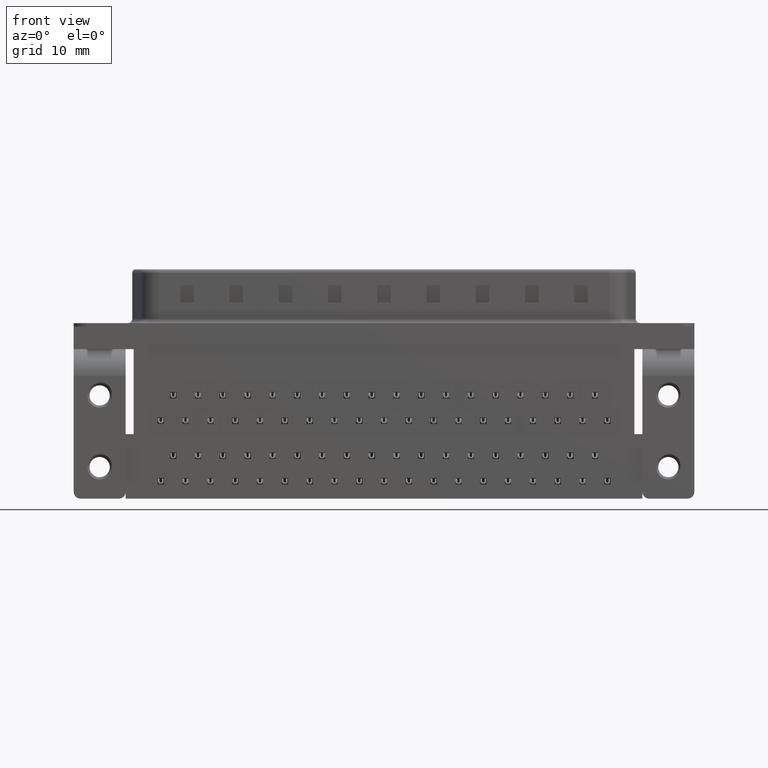
[diagram: clean part render]
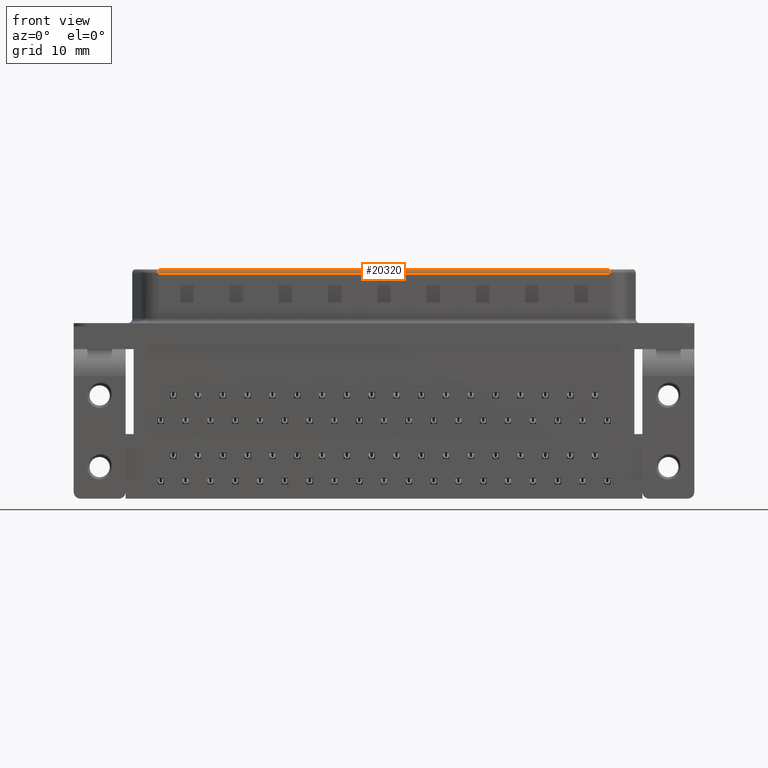
[diagram: same view with one face highlighted and labeled with its STEP entity id]
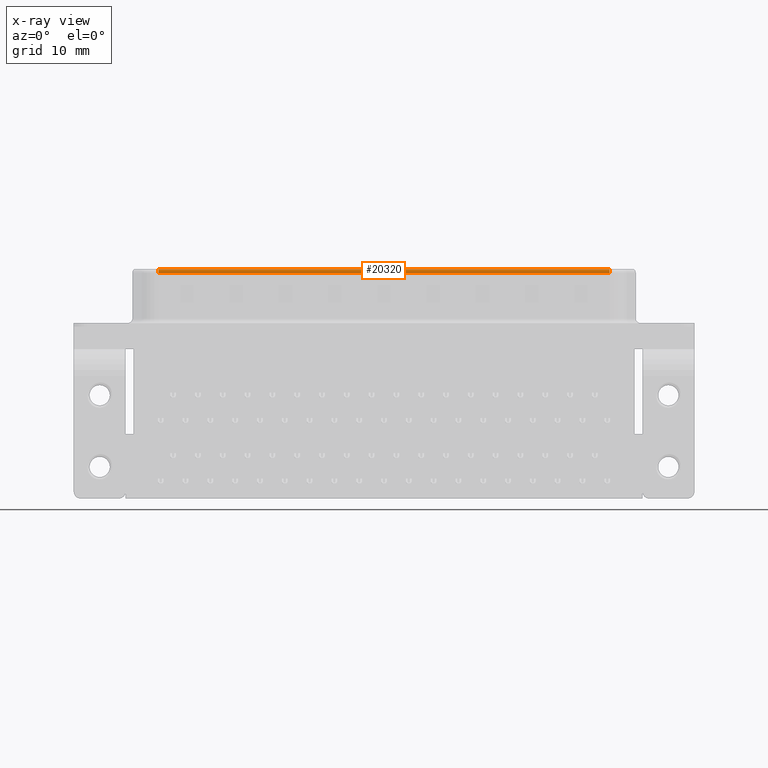
[diagram: x-ray of the same camera — body ghosted, the highlighted face saturated]
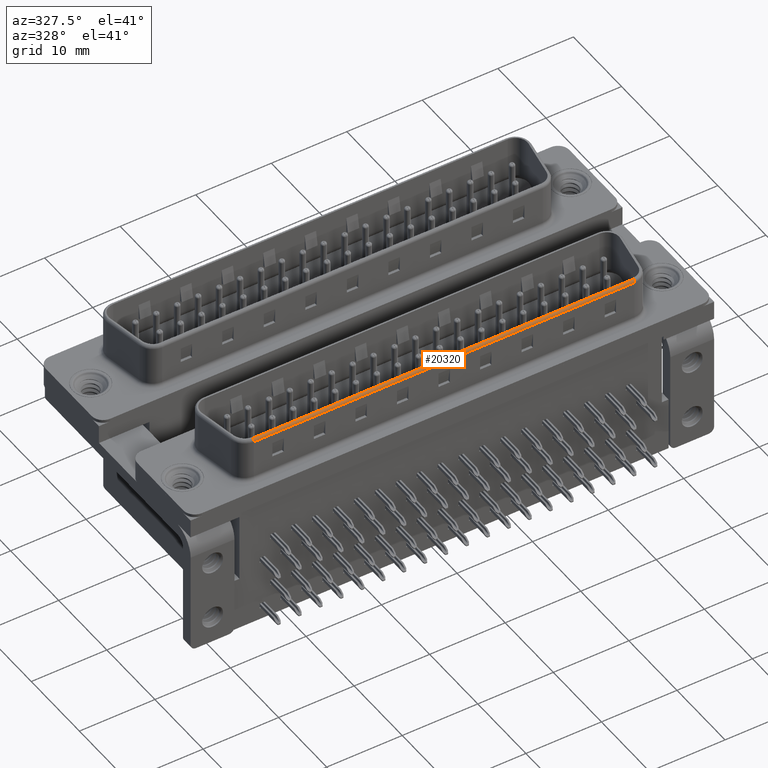
[diagram: same view with one face highlighted and labeled with its STEP entity id]
A machine part, front view. The second image highlights one B-rep face of the part: STEP entity #20320.
The next image is the same camera in x-ray: the body ghosted, the highlighted face saturated — about 0% of this face is hidden behind the body in this view.
A second angle (auxiliary view) of the same face is appended — the face is thin or edge-on in the first view.
In plain terms, the highlighted cylindrical surface (edge-blend (fillet) strip) has radius 0.5 mm, axis along (1, -0, 0).
Its self-contained STEP definition (entity closure, byte-faithful):
#1452 = EDGE_LOOP ( 'NONE', ( #27996, #8254, #47394, #29052 ) ) ;
#3951 = DIRECTION ( 'NONE',  ( 0.0000000000000000000, 0.0000000000000000000, -1.000000000000000000 ) ) ;
#4993 = VERTEX_POINT ( 'NONE', #32821 ) ;
#5036 = DIRECTION ( 'NONE',  ( 0.0000000000000000000, 1.000000000000000000, 0.0000000000000000000 ) ) ;
#6137 = AXIS2_PLACEMENT_3D ( 'NONE', #20110, #36561, #52963 ) ;
#7535 = EDGE_CURVE ( 'NONE', #4993, #47974, #23399, .T. ) ;
#8254 = ORIENTED_EDGE ( 'NONE', *, *, #7535, .F. ) ;
#9323 = CYLINDRICAL_SURFACE ( 'NONE', #33798, 0.5000000000000000000 ) ;
#9503 = VECTOR ( 'NONE', #38551, 1000.000000000000000 ) ;
#11694 = DIRECTION ( 'NONE',  ( 1.000000000000000000, -3.441890791600536047E-17, 0.0000000000000000000 ) ) ;
#12443 = EDGE_CURVE ( 'NONE', #38569, #37411, #30610, .T. ) ;
#13372 = FACE_OUTER_BOUND ( 'NONE', #1452, .T. ) ;
#20110 = CARTESIAN_POINT ( 'NONE',  ( 6.549847220455651708, -4.080000000000000071, 6.000000000000000000 ) ) ;
#20320 = ADVANCED_FACE ( 'NONE', ( #13372 ), #9323, .T. ) ;
#23399 = CIRCLE ( 'NONE', #6137, 0.5000000000000004441 ) ;
#23449 = CARTESIAN_POINT ( 'NONE',  ( 56.95015277954435362, -4.380000000000001670, 6.400000000000000355 ) ) ;
#27389 = VECTOR ( 'NONE', #11694, 1000.000000000000000 ) ;
#27996 = ORIENTED_EDGE ( 'NONE', *, *, #49133, .F. ) ;
#29052 = ORIENTED_EDGE ( 'NONE', *, *, #12443, .F. ) ;
#29869 = DIRECTION ( 'NONE',  ( 1.000000000000000000, -3.441890791600536047E-17, 0.0000000000000000000 ) ) ;
#29963 = LINE ( 'NONE', #46093, #9503 ) ;
#30324 = CARTESIAN_POINT ( 'NONE',  ( 6.549847220455651708, -4.380000000000001670, 6.400000000000000355 ) ) ;
#30610 = CIRCLE ( 'NONE', #39179, 0.5000000000000004441 ) ;
#32821 = CARTESIAN_POINT ( 'NONE',  ( 6.549847220455651708, -4.580000000000000959, 6.000000000000000000 ) ) ;
#33798 = AXIS2_PLACEMENT_3D ( 'NONE', #41685, #29869, #5036 ) ;
#36163 = EDGE_CURVE ( 'NONE', #37411, #4993, #29963, .T. ) ;
#36561 = DIRECTION ( 'NONE',  ( -1.000000000000000000, 0.0000000000000000000, 0.0000000000000000000 ) ) ;
#36591 = CARTESIAN_POINT ( 'NONE',  ( 56.95015277954435362, -4.080000000000003624, 6.000000000000000000 ) ) ;
#37411 = VERTEX_POINT ( 'NONE', #41240 ) ;
#38551 = DIRECTION ( 'NONE',  ( -1.000000000000000000, 3.441890791600536047E-17, -0.0000000000000000000 ) ) ;
#38569 = VERTEX_POINT ( 'NONE', #23449 ) ;
#39179 = AXIS2_PLACEMENT_3D ( 'NONE', #36591, #45458, #3951 ) ;
#39496 = LINE ( 'NONE', #40292, #27389 ) ;
#40292 = CARTESIAN_POINT ( 'NONE',  ( 56.95015277954435362, -4.380000000000001670, 6.400000000000000355 ) ) ;
#41240 = CARTESIAN_POINT ( 'NONE',  ( 56.95015277954435362, -4.580000000000004512, 6.000000000000000000 ) ) ;
#41685 = CARTESIAN_POINT ( 'NONE',  ( 56.95015277954435362, -4.080000000000003624, 6.000000000000000000 ) ) ;
#45458 = DIRECTION ( 'NONE',  ( 1.000000000000000000, 0.0000000000000000000, -0.0000000000000000000 ) ) ;
#46093 = CARTESIAN_POINT ( 'NONE',  ( 56.95015277954435362, -4.580000000000004512, 6.000000000000000000 ) ) ;
#47394 = ORIENTED_EDGE ( 'NONE', *, *, #36163, .F. ) ;
#47974 = VERTEX_POINT ( 'NONE', #30324 ) ;
#49133 = EDGE_CURVE ( 'NONE', #47974, #38569, #39496, .T. ) ;
#52963 = DIRECTION ( 'NONE',  ( 0.0000000000000000000, 0.0000000000000000000, 1.000000000000000000 ) ) ;